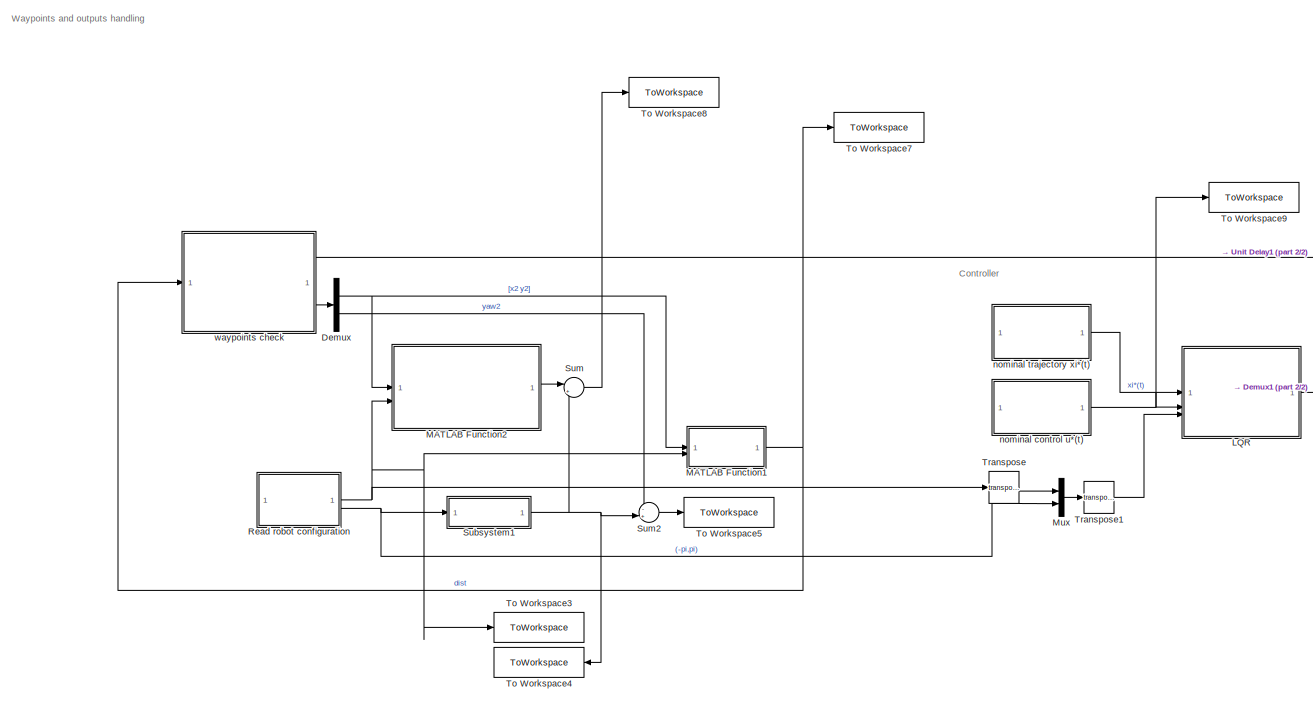
[diagram: root canvas - part 1/2, center side, full height]
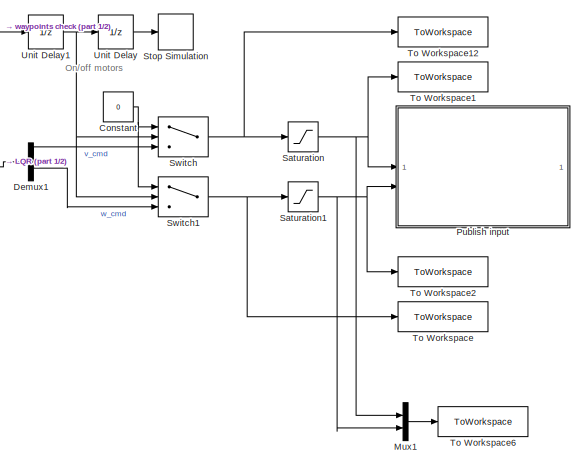
[diagram: root canvas - part 2/2, middle right region]
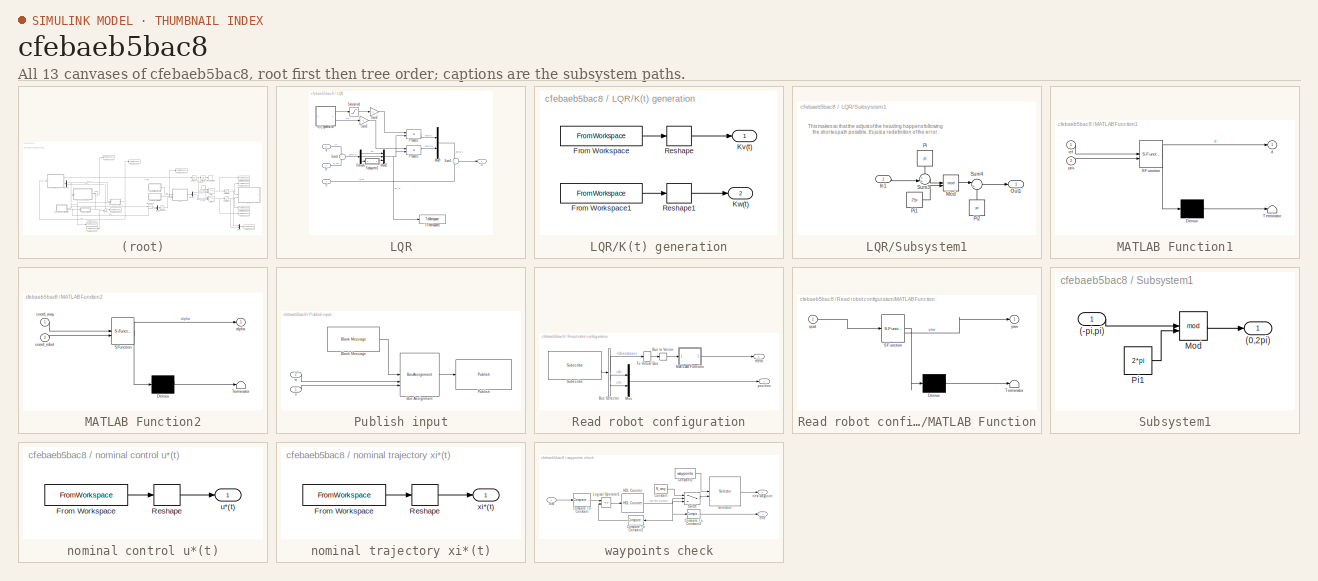
[diagram: thumbnail index - all 13 canvases of the model, root first then tree order]
MODEL slx_cfebaeb5bac8
KIND model
CONFIG AbsTol = auto
CONFIG EnableMultiTasking = off
CONFIG FixedStep = 1/f_sim
CONFIG MaxStep = auto
CONFIG MinStep = auto
CONFIG RelTol = 1e-3
CONFIG SampleTimeConstraint = Unconstrained
CONFIG SolverName = FixedStepAuto
CONFIG StartTime = 0.0
CONFIG StopTime = inf
BLOCK [Constant] Constant
  Value = 0
BLOCK [Demux] Demux
  Outputs = 2
BLOCK [Demux] Demux1
  Outputs = 2
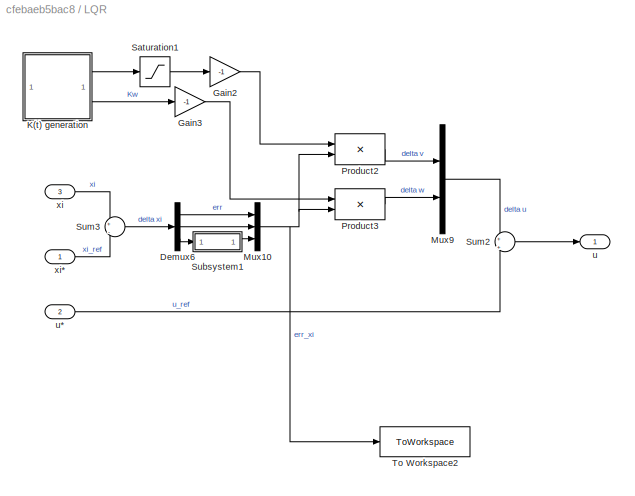
BLOCK [SubSystem] LQR
  NameLocation = top
BLOCK [Demux] LQR/Demux6
  Outputs = 3
BLOCK [Gain] LQR/Gain2
  Gain = -1
BLOCK [Gain] LQR/Gain3
  Gain = -1
BLOCK [SubSystem] LQR/K(t) generation
BLOCK [FromWorkspace] LQR/K(t) generation/From Workspace
  OutputAfterFinalValue = Holding final value
  VariableName = [time_cmd K_simv]
BLOCK [FromWorkspace] LQR/K(t) generation/From Workspace1
  OutputAfterFinalValue = Holding final value
  VariableName = [time_cmd K_simw]
BLOCK [Outport] LQR/K(t) generation/Kv(t)
BLOCK [Outport] LQR/K(t) generation/Kw(t)
  Port = 2
BLOCK [Reshape] LQR/K(t) generation/Reshape
  OutputDimensionality = Row vector (2-D)
BLOCK [Reshape] LQR/K(t) generation/Reshape1
  OutputDimensionality = Row vector (2-D)
BLOCK [Mux] LQR/Mux10
  DisplayOption = bar
  Inputs = 3
BLOCK [Mux] LQR/Mux9
  DisplayOption = bar
  Inputs = 2
BLOCK [Product] LQR/Product2
  Multiplication = Matrix(*)
BLOCK [Product] LQR/Product3
  Multiplication = Matrix(*)
BLOCK [Saturate] LQR/Saturation1
  LowerLimit = -inf
  UpperLimit = 0
BLOCK [SubSystem] LQR/Subsystem1
BLOCK [Inport] LQR/Subsystem1/In1
BLOCK [Math] LQR/Subsystem1/Mod
  Operator = mod
BLOCK [Outport] LQR/Subsystem1/Out1
BLOCK [Constant] LQR/Subsystem1/Pi
  NameLocation = left
  OutDataTypeStr = Inherit: Inherit via back propagation
  Value = pi
BLOCK [Constant] LQR/Subsystem1/Pi1
  OutDataTypeStr = Inherit: Inherit via back propagation
  Value = 2*pi
BLOCK [Constant] LQR/Subsystem1/Pi2
  NameLocation = right
  OutDataTypeStr = Inherit: Inherit via back propagation
  Value = pi
BLOCK [Sum] LQR/Subsystem1/Sum3
  Inputs = ++|
BLOCK [Sum] LQR/Subsystem1/Sum4
  Inputs = |+-
BLOCK [Sum] LQR/Sum2
  Inputs = +|+
BLOCK [Sum] LQR/Sum3
  Inputs = +|-
BLOCK [ToWorkspace] LQR/To Workspace2
  FixptAsFi = on
  MaxDataPoints = inf
  SampleTime = -1
  VariableName = delta_xi_sim
BLOCK [Outport] LQR/u
BLOCK [Inport] LQR/u*
  Port = 2
BLOCK [Inport] LQR/xi
  Port = 3
BLOCK [Inport] LQR/xi*
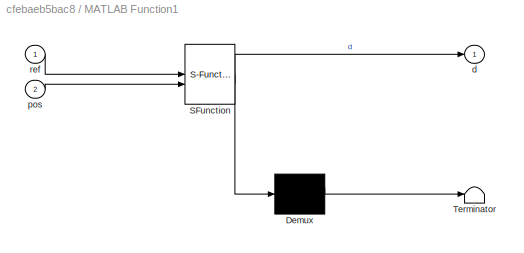
BLOCK [SubSystem] MATLAB Function1
  ErrorFcn = Stateflow.Translate.translate
  PermitHierarchicalResolution = ExplicitOnly
  SFBlockType = MATLAB Function
  TreatAsAtomicUnit = on
BLOCK [Demux] MATLAB Function1/ Demux 
  Outputs = 1
BLOCK [S-Function] MATLAB Function1/ SFunction 
  EnableBusSupport = on
  FunctionName = sf_sfun
  PortCounts = [2 2]
  SFcnIsStateOwnerBlock = off
  SFunctionDeploymentMode = off
  Tag = Stateflow S-Function 1
BLOCK [Terminator] MATLAB Function1/ Terminator 
BLOCK [Outport] MATLAB Function1/d
BLOCK [Inport] MATLAB Function1/pos
  Port = 2
BLOCK [Inport] MATLAB Function1/ref
BLOCK [SubSystem] MATLAB Function2
  ErrorFcn = Stateflow.Translate.translate
  PermitHierarchicalResolution = ExplicitOnly
  SFBlockType = MATLAB Function
  TreatAsAtomicUnit = on
BLOCK [Demux] MATLAB Function2/ Demux 
  Outputs = 1
BLOCK [S-Function] MATLAB Function2/ SFunction 
  EnableBusSupport = on
  FunctionName = sf_sfun
  PortCounts = [2 2]
  SFcnIsStateOwnerBlock = off
  SFunctionDeploymentMode = off
  Tag = Stateflow S-Function 3
BLOCK [Terminator] MATLAB Function2/ Terminator 
BLOCK [Outport] MATLAB Function2/alpha
BLOCK [Inport] MATLAB Function2/coord_robot
  Port = 2
BLOCK [Inport] MATLAB Function2/coord_way
BLOCK [Mux] Mux
  DisplayOption = bar
  Inputs = 2
BLOCK [Mux] Mux1
  DisplayOption = bar
  Inputs = 2
BLOCK [SubSystem] Publish input
BLOCK [Reference] Publish input/Blank Message  REF=robotlib/Blank Message
  SourceBlock = robotlib/Blank Message
  SourceType = ROS Blank Message
BLOCK [BusAssignment] Publish input/Bus Assignment
  AssignedSignals = Angular.Z,Linear.X
BLOCK [Reference] Publish input/Publish  REF=robotlib/Publish
  SourceBlock = robotlib/Publish
  SourceType = ROS Publish
BLOCK [Inport] Publish input/v
BLOCK [Inport] Publish input/w
  Port = 2
BLOCK [SubSystem] Read robot configuration
BLOCK [BusSelector] Read robot configuration/Bus Selector
  OutputSignals = Pose.Pose.Orientation,Pose.Pose.Position.X,Pose.Pose.Position.Y
BLOCK [BusToVector] Read robot configuration/Bus to Vector
BLOCK [SubSystem] Read robot configuration/MATLAB Function
  ErrorFcn = Stateflow.Translate.translate
  PermitHierarchicalResolution = ExplicitOnly
  SFBlockType = MATLAB Function
  TreatAsAtomicUnit = on
BLOCK [Demux] Read robot configuration/MATLAB Function/ Demux 
  Outputs = 1
BLOCK [S-Function] Read robot configuration/MATLAB Function/ SFunction 
  EnableBusSupport = on
  FunctionName = sf_sfun
  PortCounts = [1 2]
  SFcnIsStateOwnerBlock = off
  SFunctionDeploymentMode = off
  Tag = Stateflow S-Function 2
BLOCK [Terminator] Read robot configuration/MATLAB Function/ Terminator 
BLOCK [Inport] Read robot configuration/MATLAB Function/quat
BLOCK [Outport] Read robot configuration/MATLAB Function/yaw
BLOCK [Mux] Read robot configuration/Mux
  DisplayOption = bar
  Inputs = 2
BLOCK [Reference] Read robot configuration/Subscribe  REF=robotlib/Subscribe
  SourceBlock = robotlib/Subscribe
  SourceType = ROS Subscribe
BLOCK [SignalConversion] Read robot configuration/To Virtual Bus
  ConversionOutput = Virtual bus
  OverrideOpt = off
BLOCK [Outport] Read robot configuration/position
BLOCK [Outport] Read robot configuration/theta
  Port = 2
BLOCK [Saturate] Saturation
  LowerLimit = v_min
  UpperLimit = v_max
BLOCK [Saturate] Saturation1
  LowerLimit = w_min
  UpperLimit = w_max
BLOCK [Stop] Stop Simulation
BLOCK [SubSystem] Subsystem1
BLOCK [Inport] Subsystem1/(-pi,pi)
BLOCK [Outport] Subsystem1/(0,2pi)
BLOCK [Math] Subsystem1/Mod
  Operator = mod
BLOCK [Constant] Subsystem1/Pi1
  OutDataTypeStr = Inherit: Inherit via back propagation
  Value = 2*pi
BLOCK [Sum] Sum
  Inputs = |+-
BLOCK [Sum] Sum2
  Inputs = -+|
BLOCK [Switch] Switch
  Criteria = u2 > Threshold
  InputSameDT = off
  SaturateOnIntegerOverflow = off
BLOCK [Switch] Switch1
  Criteria = u2 > Threshold
  InputSameDT = off
  SaturateOnIntegerOverflow = off
BLOCK [ToWorkspace] To Workspace
  FixptAsFi = on
  MaxDataPoints = inf
  SampleTime = -1
  Save2DSignal = 2-D array (concatenate along first dimension)
  VariableName = u_w
BLOCK [ToWorkspace] To Workspace1
  FixptAsFi = on
  MaxDataPoints = inf
  SampleTime = -1
  Save2DSignal = 2-D array (concatenate along first dimension)
  VariableName = v_cmd
BLOCK [ToWorkspace] To Workspace12
  FixptAsFi = on
  MaxDataPoints = inf
  SampleTime = -1
  Save2DSignal = 2-D array (concatenate along first dimension)
  VariableName = u_v
BLOCK [ToWorkspace] To Workspace2
  FixptAsFi = on
  MaxDataPoints = inf
  SampleTime = -1
  Save2DSignal = 2-D array (concatenate along first dimension)
  VariableName = w_cmd
BLOCK [ToWorkspace] To Workspace3
  FixptAsFi = on
  MaxDataPoints = inf
  SampleTime = -1
  Save2DSignal = 2-D array (concatenate along first dimension)
  VariableName = position
BLOCK [ToWorkspace] To Workspace4
  FixptAsFi = on
  MaxDataPoints = inf
  SampleTime = -1
  Save2DSignal = 2-D array (concatenate along first dimension)
  VariableName = orientation
BLOCK [ToWorkspace] To Workspace5
  FixptAsFi = on
  MaxDataPoints = inf
  SampleTime = -1
  Save2DSignal = 2-D array (concatenate along first dimension)
  VariableName = err_orient
BLOCK [ToWorkspace] To Workspace6
  FixptAsFi = on
  MaxDataPoints = inf
  SampleTime = -1
  Save2DSignal = 2-D array (concatenate along first dimension)
  VariableName = u_cmd_sim
BLOCK [ToWorkspace] To Workspace7
  FixptAsFi = on
  MaxDataPoints = inf
  SampleTime = -1
  Save2DSignal = 2-D array (concatenate along first dimension)
  VariableName = dist
BLOCK [ToWorkspace] To Workspace8
  FixptAsFi = on
  MaxDataPoints = inf
  SampleTime = -1
  Save2DSignal = 2-D array (concatenate along first dimension)
  VariableName = err_dir
BLOCK [ToWorkspace] To Workspace9
  FixptAsFi = on
  MaxDataPoints = inf
  SampleTime = -1
  Save2DSignal = 2-D array (concatenate along first dimension)
  VariableName = u_ref_sim
BLOCK [Math] Transpose
  Operator = transpose
BLOCK [Math] Transpose1
  Operator = transpose
BLOCK [UnitDelay] Unit Delay
  HasFrameUpgradeWarning = on
  SampleTime = 3
BLOCK [UnitDelay] Unit Delay1
  HasFrameUpgradeWarning = on
  SampleTime = 0.5
BLOCK [SubSystem] nominal control u*(t)
BLOCK [FromWorkspace] nominal control u*(t)/From Workspace
  OutputAfterFinalValue = Holding final value
  VariableName = [time_cmd uk]
BLOCK [Reshape] nominal control u*(t)/Reshape
  OutputDimensionality = Column vector (2-D)
BLOCK [Outport] nominal control u*(t)/u*(t)
BLOCK [SubSystem] nominal trajectory xi*(t)
BLOCK [FromWorkspace] nominal trajectory xi*(t)/From Workspace
  OutputAfterFinalValue = Holding final value
  VariableName = [time_cmd xik]
BLOCK [Reshape] nominal trajectory xi*(t)/Reshape
  OutputDimensionality = Column vector (2-D)
BLOCK [Outport] nominal trajectory xi*(t)/xi*(t)
BLOCK [SubSystem] waypoints check
BLOCK [Reference] waypoints check/Compare To Constant  REF=simulink/Logic and Bit
Operations/Compare
To Constant
  SourceBlock = simulink/Logic and Bit\nOperations/Compare\nTo Constant
  SourceType = Compare To Constant
BLOCK [Reference] waypoints check/Compare To Constant2  REF=simulink/Logic and Bit
Operations/Compare
To Constant
  SourceBlock = simulink/Logic and Bit\nOperations/Compare\nTo Constant
  SourceType = Compare To Constant
BLOCK [Reference] waypoints check/Compare To Constant3  REF=simulink/Logic and Bit
Operations/Compare
To Constant
  SourceBlock = simulink/Logic and Bit\nOperations/Compare\nTo Constant
  SourceType = Compare To Constant
BLOCK [Constant] waypoints check/Constant
  Value = N_way
BLOCK [Constant] waypoints check/Constant2
  Value = waypoints
BLOCK [Reference] waypoints check/HDL Counter  REF=hdlsllib/Sources/HDL Counter
  SourceBlock = hdlsllib/Sources/HDL Counter
  SourceType = HDL Counter
BLOCK [Logic] waypoints check/Logical Operator1
  AllPortsSameDT = off
  OutDataTypeStr = boolean
BLOCK [Selector] waypoints check/Selector1
  IndexOptions = Index vector (port),Select all
  Indices = [1 3],[1 2]
  InputPortWidth = 3
  NumberOfDimensions = 2
  OutputSizes = 1,1
BLOCK [Switch] waypoints check/Switch
  Criteria = u2 > Threshold
  InputSameDT = off
  SaturateOnIntegerOverflow = off
  Threshold = N_way
BLOCK [Inport] waypoints check/dist
BLOCK [Outport] waypoints check/end
BLOCK [Outport] waypoints check/next waypoint
  Port = 2
ANNOTATION (root): Controller
ANNOTATION (root): On/off motors
ANNOTATION (root): Waypoints and outputs handling
ANNOTATION LQR/Subsystem1: This makes so that the adjust of the heading happens following the shortes path possible. It's just a redefinition of the error.
NET Constant:1 -> Switch1:1, Switch:1
LINE Demux1:1 -> Switch:3
LINE Demux1:2 -> Switch1:3
NET Demux:1 -> MATLAB Function1:1, MATLAB Function2:1
LINE Demux:2 -> Sum2:1
LINE LQR/Demux6:1 -> LQR/Mux10:1
LINE LQR/Demux6:2 -> LQR/Mux10:2
LINE LQR/Demux6:3 -> LQR/Subsystem1:1
LINE LQR/Gain2:1 -> LQR/Product2:1
LINE LQR/Gain3:1 -> LQR/Product3:1
LINE LQR/K(t) generation/From Workspace1:1 -> LQR/K(t) generation/Reshape1:1
LINE LQR/K(t) generation/From Workspace:1 -> LQR/K(t) generation/Reshape:1
LINE LQR/K(t) generation/Reshape1:1 -> LQR/K(t) generation/Kw(t):1
LINE LQR/K(t) generation/Reshape:1 -> LQR/K(t) generation/Kv(t):1
LINE LQR/K(t) generation:1 -> LQR/Saturation1:1
LINE LQR/K(t) generation:2 -> LQR/Gain3:1
NET LQR/Mux10:1 -> LQR/Product2:2, LQR/Product3:2, LQR/To Workspace2:1
LINE LQR/Mux9:1 -> LQR/Sum2:1
LINE LQR/Product2:1 -> LQR/Mux9:1
LINE LQR/Product3:1 -> LQR/Mux9:2
LINE LQR/Saturation1:1 -> LQR/Gain2:1
LINE LQR/Subsystem1/In1:1 -> LQR/Subsystem1/Sum3:2
LINE LQR/Subsystem1/Mod:1 -> LQR/Subsystem1/Sum4:1
LINE LQR/Subsystem1/Pi1:1 -> LQR/Subsystem1/Mod:2
LINE LQR/Subsystem1/Pi2:1 -> LQR/Subsystem1/Sum4:2
LINE LQR/Subsystem1/Pi:1 -> LQR/Subsystem1/Sum3:1
LINE LQR/Subsystem1/Sum3:1 -> LQR/Subsystem1/Mod:1
LINE LQR/Subsystem1/Sum4:1 -> LQR/Subsystem1/Out1:1
LINE LQR/Subsystem1:1 -> LQR/Mux10:3
LINE LQR/Sum2:1 -> LQR/u:1
LINE LQR/Sum3:1 -> LQR/Demux6:1
LINE LQR/u*:1 -> LQR/Sum2:2
LINE LQR/xi*:1 -> LQR/Sum3:2
LINE LQR/xi:1 -> LQR/Sum3:1
LINE LQR:1 -> Demux1:1
NET MATLAB Function1:1 -> To Workspace7:1, waypoints check:1
LINE MATLAB Function2:1 -> Sum:1
LINE Mux1:1 -> To Workspace6:1
LINE Mux:1 -> Transpose1:1
LINE Publish input/Blank Message:1 -> Publish input/Bus Assignment:1
LINE Publish input/Bus Assignment:1 -> Publish input/Publish:1
LINE Publish input/v:1 -> Publish input/Bus Assignment:3
LINE Publish input/w:1 -> Publish input/Bus Assignment:2
LINE Read robot configuration/Bus Selector:1 -> Read robot configuration/To Virtual Bus:1
LINE Read robot configuration/Bus Selector:2 -> Read robot configuration/Mux:1
LINE Read robot configuration/Bus Selector:3 -> Read robot configuration/Mux:2
LINE Read robot configuration/Bus to Vector:1 -> Read robot configuration/MATLAB Function:1
LINE Read robot configuration/MATLAB Function:1 -> Read robot configuration/theta:1
LINE Read robot configuration/Mux:1 -> Read robot configuration/position:1
LINE Read robot configuration/Subscribe:2 -> Read robot configuration/Bus Selector:1
LINE Read robot configuration/To Virtual Bus:1 -> Read robot configuration/Bus to Vector:1
NET Read robot configuration:1 -> MATLAB Function1:2, MATLAB Function2:2, To Workspace3:1, Transpose:1
NET Read robot configuration:2 -> Mux:2, Subsystem1:1
NET Saturation1:1 -> Mux1:2, Publish input:2, To Workspace2:1
NET Saturation:1 -> Mux1:1, Publish input:1, To Workspace1:1
LINE Subsystem1/(-pi,pi):1 -> Subsystem1/Mod:1
LINE Subsystem1/Mod:1 -> Subsystem1/(0,2pi):1
LINE Subsystem1/Pi1:1 -> Subsystem1/Mod:2
NET Subsystem1:1 -> Sum2:2, Sum:2, To Workspace4:1
LINE Sum2:1 -> To Workspace5:1
LINE Sum:1 -> To Workspace8:1
NET Switch1:1 -> Saturation1:1, To Workspace:1
NET Switch:1 -> Saturation:1, To Workspace12:1
LINE Transpose1:1 -> LQR:3
LINE Transpose:1 -> Mux:1
NET Unit Delay1:1 -> Switch1:2, Switch:2, Unit Delay:1
LINE Unit Delay:1 -> Stop Simulation:1
LINE nominal control u*(t)/From Workspace:1 -> nominal control u*(t)/Reshape:1
LINE nominal control u*(t)/Reshape:1 -> nominal control u*(t)/u*(t):1
NET nominal control u*(t):1 -> LQR:2, To Workspace9:1
LINE nominal trajectory xi*(t)/From Workspace:1 -> nominal trajectory xi*(t)/Reshape:1
LINE nominal trajectory xi*(t)/Reshape:1 -> nominal trajectory xi*(t)/xi*(t):1
LINE nominal trajectory xi*(t):1 -> LQR:1
LINE waypoints check/Compare To Constant2:1 -> waypoints check/Logical Operator1:2
LINE waypoints check/Compare To Constant3:1 -> waypoints check/end:1
LINE waypoints check/Compare To Constant:1 -> waypoints check/Logical Operator1:1
LINE waypoints check/Constant2:1 -> waypoints check/Selector1:1
LINE waypoints check/Constant:1 -> waypoints check/Switch:1
NET waypoints check/HDL Counter:1 -> waypoints check/Compare To Constant2:1, waypoints check/Compare To Constant3:1, waypoints check/Switch:2, waypoints check/Switch:3
LINE waypoints check/Logical Operator1:1 -> waypoints check/HDL Counter:1
LINE waypoints check/Selector1:1 -> waypoints check/next waypoint:1
LINE waypoints check/Switch:1 -> waypoints check/Selector1:2
LINE waypoints check/dist:1 -> waypoints check/Compare To Constant:1
LINE waypoints check:1 -> Unit Delay1:1
LINE waypoints check:2 -> Demux:1
note: NET lines group one-source signal fan-out (src -> all destinations, sorted); 1:1 wires keep LINE
CHART Read robot configuration/MATLAB Function states=1 transitions=1
  STATE_LABEL 'eML_blk_kernel()'
  STATE_LABEL 'SCRIPT:\nfunction yaw=quat2yaw(quat)\n\nq=zeros(1,4);\n\nq(1)=quat(1);\nq(2)=quat(2);\nq(3)=quat(3);\nq(4)=quat(4);\n\neul=quat2eul(q);\n\nyaw=eul(3);\n\nend\n'
CHART MATLAB Function2 states=1 transitions=1
  STATE_LABEL 'eML_blk_kernel()'
  STATE_LABEL 'SCRIPT:\nfunction alpha=ReferenceDirection(coord_way,coord_robot)\n\n% computes the direction (angle wrt positive x axis,\n% counterclockwise) between two inputed points [x1 y1 ; x2 y2] \n\nx1=coord_robot(1);\ny1=coord_robot(2);\nx2=coord_way(1);\ny2=coord_way(2);\n\nalpha=atan2((y2-y1),(x2-x1)); % (-pi,pi)\n\nalpha=mod(alpha,2*pi); % (0,2pi)\n\nend\n'
CHART MATLAB Function1 states=1 transitions=1
  STATE_LABEL 'eML_blk_kernel()'
  STATE_LABEL 'SCRIPT:\nfunction d=dist(ref,pos)\n\n% computes the distance between two points (x1,y1) and (x2,y2)\n\nx_ref=ref(1);\ny_ref=ref(2);\nx_pos=pos(1);\ny_pos=pos(2);\n\nd=sqrt((x_ref-x_pos)^2+(y_ref-y_pos)^2);\n\nend\n'
CHART  states=0 transitions=0
CHART  states=0 transitions=0
CHART  states=0 transitions=0
